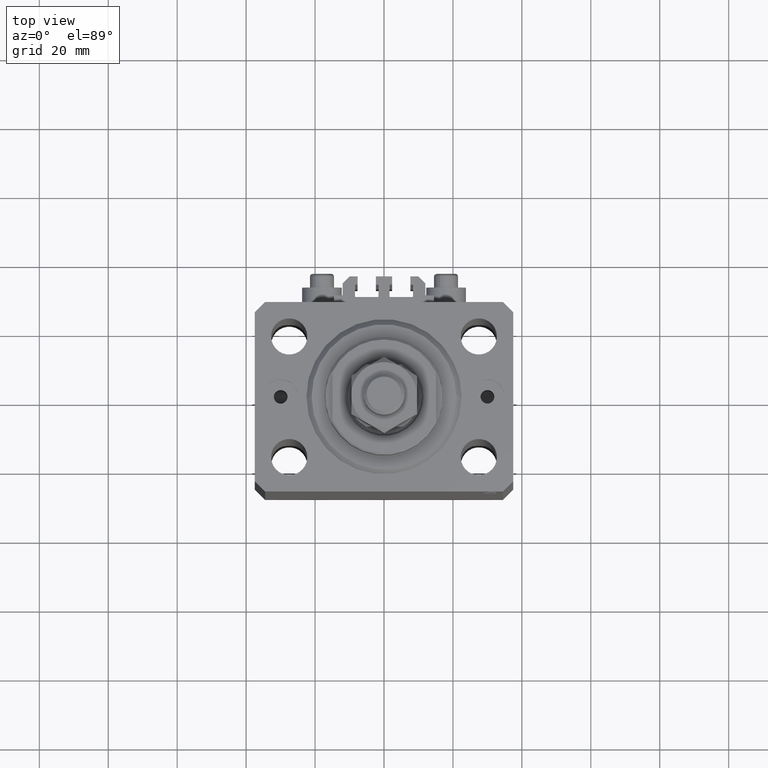
[diagram: clean part render]
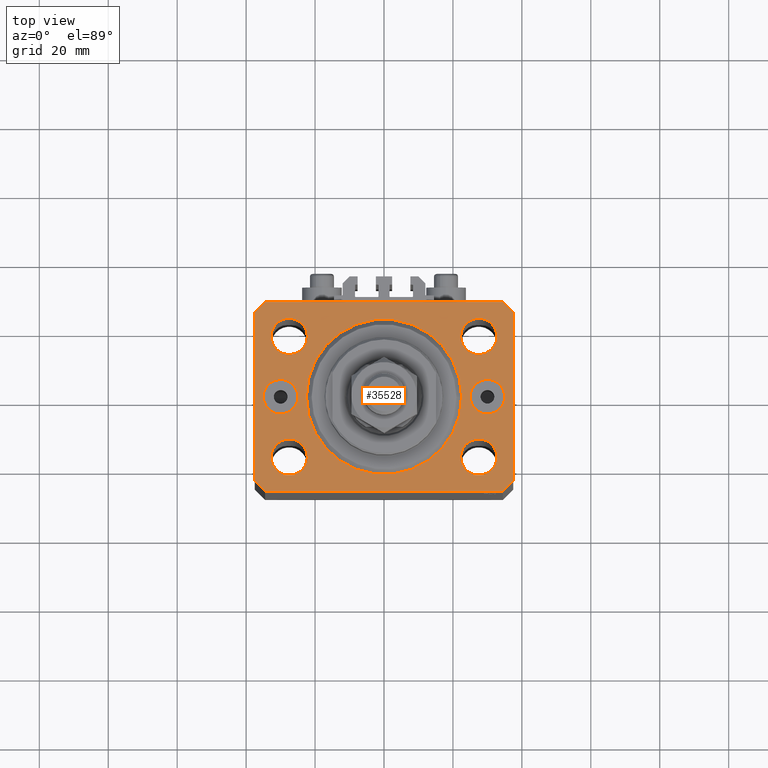
[diagram: same view with one face highlighted and labeled with its STEP entity id]
A machine part, top view. The second image highlights one B-rep face of the part: STEP entity #35528.
In plain terms, the highlighted planar face has unit normal (0, 0, 1).
Its self-contained STEP definition (entity closure, byte-faithful):
#36 = AXIS2_PLACEMENT_3D ( 'NONE', #4438, #37742, #254 ) ;
#224 = DIRECTION ( 'NONE',  ( 1.000000000000000000, 0.000000000000000000, 0.000000000000000000 ) ) ;
#254 = DIRECTION ( 'NONE',  ( 1.000000000000000000, 0.000000000000000000, 0.000000000000000000 ) ) ;
#851 = VERTEX_POINT ( 'NONE', #18013 ) ;
#984 = DIRECTION ( 'NONE',  ( 0.000000000000000000, 0.000000000000000000, 1.000000000000000000 ) ) ;
#1068 = CARTESIAN_POINT ( 'NONE',  ( 22.50000000000000355, 0.000000000000000000, 0.000000000000000000 ) ) ;
#1310 = CARTESIAN_POINT ( 'NONE',  ( 32.75000000000000000, 17.49999999999999289, 0.000000000000000000 ) ) ;
#1417 = LINE ( 'NONE', #38435, #46409 ) ;
#1662 = CARTESIAN_POINT ( 'NONE',  ( -22.24999999999999289, -17.50000000000000000, 0.000000000000000000 ) ) ;
#2406 = AXIS2_PLACEMENT_3D ( 'NONE', #7907, #984, #41455 ) ;
#2415 = DIRECTION ( 'NONE',  ( 1.000000000000000000, 0.000000000000000000, 0.000000000000000000 ) ) ;
#2441 = VECTOR ( 'NONE', #5934, 1000.000000000000000 ) ;
#2582 = ORIENTED_EDGE ( 'NONE', *, *, #9590, .T. ) ;
#2610 = EDGE_LOOP ( 'NONE', ( #9771, #42722 ) ) ;
#2741 = EDGE_LOOP ( 'NONE', ( #5873, #25745 ) ) ;
#2779 = ORIENTED_EDGE ( 'NONE', *, *, #46538, .T. ) ;
#2852 = AXIS2_PLACEMENT_3D ( 'NONE', #32266, #6614, #21665 ) ;
#2857 = ORIENTED_EDGE ( 'NONE', *, *, #28378, .F. ) ;
#3114 = VECTOR ( 'NONE', #3466, 1000.000000000000114 ) ;
#3156 = CARTESIAN_POINT ( 'NONE',  ( 37.49999999999999289, -24.50000000000000000, 0.000000000000000000 ) ) ;
#3386 = VERTEX_POINT ( 'NONE', #3156 ) ;
#3466 = DIRECTION ( 'NONE',  ( 0.7071067811865474617, 0.7071067811865474617, 0.000000000000000000 ) ) ;
#3912 = CARTESIAN_POINT ( 'NONE',  ( -37.49999999999999289, 24.50000000000000000, 0.000000000000000000 ) ) ;
#3947 = DIRECTION ( 'NONE',  ( 0.000000000000000000, 0.000000000000000000, 1.000000000000000000 ) ) ;
#4438 = CARTESIAN_POINT ( 'NONE',  ( -30.00000000000000000, 0.000000000000000000, 0.000000000000000000 ) ) ;
#4442 = CIRCLE ( 'NONE', #19411, 5.250000000000000888 ) ;
#4468 = CARTESIAN_POINT ( 'NONE',  ( -34.99999999999999289, 6.123233995736768255E-16, 0.000000000000000000 ) ) ;
#4515 = LINE ( 'NONE', #47181, #40039 ) ;
#4579 = FACE_BOUND ( 'NONE', #48809, .T. ) ;
#5873 = ORIENTED_EDGE ( 'NONE', *, *, #8880, .F. ) ;
#5934 = DIRECTION ( 'NONE',  ( 1.000000000000000000, 0.000000000000000000, 0.000000000000000000 ) ) ;
#6005 = VERTEX_POINT ( 'NONE', #43144 ) ;
#6015 = CARTESIAN_POINT ( 'NONE',  ( 27.50000000000000000, 17.49999999999999289, 0.000000000000000000 ) ) ;
#6147 = DIRECTION ( 'NONE',  ( 1.000000000000000000, 0.000000000000000000, 0.000000000000000000 ) ) ;
#6367 = CIRCLE ( 'NONE', #10262, 5.250000000000000888 ) ;
#6440 = ORIENTED_EDGE ( 'NONE', *, *, #31522, .T. ) ;
#6614 = DIRECTION ( 'NONE',  ( 0.000000000000000000, 0.000000000000000000, 1.000000000000000000 ) ) ;
#7541 = VERTEX_POINT ( 'NONE', #32096 ) ;
#7658 = CARTESIAN_POINT ( 'NONE',  ( 34.49999999999999289, -27.49999999999999645, 0.000000000000000000 ) ) ;
#7800 = DIRECTION ( 'NONE',  ( 0.000000000000000000, 0.000000000000000000, 1.000000000000000000 ) ) ;
#7907 = CARTESIAN_POINT ( 'NONE',  ( -27.49999999999999289, -17.50000000000000000, 0.000000000000000000 ) ) ;
#7922 = DIRECTION ( 'NONE',  ( 0.000000000000000000, -0.000000000000000000, -1.000000000000000000 ) ) ;
#8188 = CARTESIAN_POINT ( 'NONE',  ( -32.74999999999999289, -17.50000000000000000, 0.000000000000000000 ) ) ;
#8446 = CIRCLE ( 'NONE', #42340, 5.250000000000000888 ) ;
#8580 = VERTEX_POINT ( 'NONE', #38053 ) ;
#8791 = AXIS2_PLACEMENT_3D ( 'NONE', #20189, #42902, #2415 ) ;
#8876 = EDGE_CURVE ( 'NONE', #34474, #15051, #30092, .T. ) ;
#8880 = EDGE_CURVE ( 'NONE', #17841, #45896, #44953, .T. ) ;
#9557 = LINE ( 'NONE', #24372, #26657 ) ;
#9590 = EDGE_CURVE ( 'NONE', #22891, #6005, #42927, .T. ) ;
#9615 = CARTESIAN_POINT ( 'NONE',  ( -27.50000000000000000, 17.49999999999999645, 0.000000000000000000 ) ) ;
#9771 = ORIENTED_EDGE ( 'NONE', *, *, #21956, .F. ) ;
#9985 = CIRCLE ( 'NONE', #37557, 5.250000000000000888 ) ;
#10075 = CARTESIAN_POINT ( 'NONE',  ( 30.00000000000000000, 0.000000000000000000, 0.000000000000000000 ) ) ;
#10083 = AXIS2_PLACEMENT_3D ( 'NONE', #45962, #35310, #31383 ) ;
#10262 = AXIS2_PLACEMENT_3D ( 'NONE', #9615, #43910, #13314 ) ;
#10404 = DIRECTION ( 'NONE',  ( 0.000000000000000000, 0.000000000000000000, 1.000000000000000000 ) ) ;
#10421 = EDGE_CURVE ( 'NONE', #45896, #17841, #19031, .T. ) ;
#11240 = CARTESIAN_POINT ( 'NONE',  ( 0.000000000000000000, 0.000000000000000000, 0.000000000000000000 ) ) ;
#11284 = CARTESIAN_POINT ( 'NONE',  ( -37.49999999999999289, -24.50000000000000000, 0.000000000000000000 ) ) ;
#11540 = ORIENTED_EDGE ( 'NONE', *, *, #22808, .F. ) ;
#11634 = CIRCLE ( 'NONE', #39211, 4.999999999999997335 ) ;
#11692 = EDGE_CURVE ( 'NONE', #13598, #45758, #14318, .T. ) ;
#11777 = VERTEX_POINT ( 'NONE', #20207 ) ;
#11944 = AXIS2_PLACEMENT_3D ( 'NONE', #14342, #3947, #14583 ) ;
#12647 = CARTESIAN_POINT ( 'NONE',  ( -34.49999999999998579, -27.49999999999999645, 0.000000000000000000 ) ) ;
#13314 = DIRECTION ( 'NONE',  ( 1.000000000000000000, 0.000000000000000000, 0.000000000000000000 ) ) ;
#13392 = DIRECTION ( 'NONE',  ( 1.076236605503979380E-14, 1.000000000000000000, 0.000000000000000000 ) ) ;
#13598 = VERTEX_POINT ( 'NONE', #13634 ) ;
#13634 = CARTESIAN_POINT ( 'NONE',  ( -22.25000000000000000, 17.49999999999999645, 0.000000000000000000 ) ) ;
#13647 = LINE ( 'NONE', #7658, #3114 ) ;
#13899 = ORIENTED_EDGE ( 'NONE', *, *, #38479, .T. ) ;
#13923 = ORIENTED_EDGE ( 'NONE', *, *, #28709, .F. ) ;
#13982 = VERTEX_POINT ( 'NONE', #3912 ) ;
#14279 = EDGE_LOOP ( 'NONE', ( #44397, #35408, #15582, #32980, #26024, #13899, #2779, #2582 ) ) ;
#14318 = CIRCLE ( 'NONE', #11944, 5.250000000000000888 ) ;
#14342 = CARTESIAN_POINT ( 'NONE',  ( -27.50000000000000000, 17.49999999999999645, 0.000000000000000000 ) ) ;
#14394 = VERTEX_POINT ( 'NONE', #18460 ) ;
#14434 = VERTEX_POINT ( 'NONE', #11284 ) ;
#14583 = DIRECTION ( 'NONE',  ( 1.000000000000000000, 0.000000000000000000, 0.000000000000000000 ) ) ;
#15051 = VERTEX_POINT ( 'NONE', #17291 ) ;
#15414 = EDGE_LOOP ( 'NONE', ( #11540, #2857 ) ) ;
#15582 = ORIENTED_EDGE ( 'NONE', *, *, #31309, .T. ) ;
#15661 = LINE ( 'NONE', #38112, #36740 ) ;
#16607 = ORIENTED_EDGE ( 'NONE', *, *, #42790, .F. ) ;
#16751 = EDGE_LOOP ( 'NONE', ( #16607, #17637 ) ) ;
#17203 = CIRCLE ( 'NONE', #10083, 5.250000000000000888 ) ;
#17291 = CARTESIAN_POINT ( 'NONE',  ( -24.99999999999999645, 0.000000000000000000, 0.000000000000000000 ) ) ;
#17372 = VERTEX_POINT ( 'NONE', #39955 ) ;
#17637 = ORIENTED_EDGE ( 'NONE', *, *, #40957, .F. ) ;
#17841 = VERTEX_POINT ( 'NONE', #1662 ) ;
#18013 = CARTESIAN_POINT ( 'NONE',  ( -34.49999999999999289, 27.50000000000000000, 0.000000000000000000 ) ) ;
#18188 = ORIENTED_EDGE ( 'NONE', *, *, #11692, .F. ) ;
#18318 = VERTEX_POINT ( 'NONE', #12647 ) ;
#18460 = CARTESIAN_POINT ( 'NONE',  ( 22.24999999999999289, -17.50000000000000000, 0.000000000000000000 ) ) ;
#18995 = CIRCLE ( 'NONE', #8791, 22.50000000000000355 ) ;
#19016 = DIRECTION ( 'NONE',  ( 1.000000000000000000, 0.000000000000000000, 0.000000000000000000 ) ) ;
#19031 = CIRCLE ( 'NONE', #37935, 5.250000000000000888 ) ;
#19411 = AXIS2_PLACEMENT_3D ( 'NONE', #6015, #39816, #46976 ) ;
#19582 = CARTESIAN_POINT ( 'NONE',  ( 27.50000000000000000, 17.49999999999999289, 0.000000000000000000 ) ) ;
#19619 = FACE_BOUND ( 'NONE', #22167, .T. ) ;
#20189 = CARTESIAN_POINT ( 'NONE',  ( 0.000000000000000000, 0.000000000000000000, 0.000000000000000000 ) ) ;
#20207 = CARTESIAN_POINT ( 'NONE',  ( 34.49999999999999289, -27.49999999999999645, 0.000000000000000000 ) ) ;
#20393 = ORIENTED_EDGE ( 'NONE', *, *, #38746, .T. ) ;
#20665 = DIRECTION ( 'NONE',  ( 0.7071067811865483499, -0.7071067811865466846, 0.000000000000000000 ) ) ;
#21665 = DIRECTION ( 'NONE',  ( 1.000000000000000000, 0.000000000000000000, 0.000000000000000000 ) ) ;
#21900 = CARTESIAN_POINT ( 'NONE',  ( -34.49999999999998579, -27.49999999999999645, 0.000000000000000000 ) ) ;
#21956 = EDGE_CURVE ( 'NONE', #15051, #34474, #41657, .T. ) ;
#22167 = EDGE_LOOP ( 'NONE', ( #13923, #43764 ) ) ;
#22594 = FACE_OUTER_BOUND ( 'NONE', #14279, .T. ) ;
#22627 = EDGE_CURVE ( 'NONE', #851, #13982, #15661, .T. ) ;
#22808 = EDGE_CURVE ( 'NONE', #29849, #7541, #4442, .T. ) ;
#22891 = VERTEX_POINT ( 'NONE', #37798 ) ;
#23589 = DIRECTION ( 'NONE',  ( 1.000000000000000000, 0.000000000000000000, 0.000000000000000000 ) ) ;
#23686 = AXIS2_PLACEMENT_3D ( 'NONE', #35158, #27535, #23589 ) ;
#23968 = VERTEX_POINT ( 'NONE', #25465 ) ;
#24047 = CARTESIAN_POINT ( 'NONE',  ( -32.75000000000000000, 17.49999999999999645, 0.000000000000000000 ) ) ;
#24237 = DIRECTION ( 'NONE',  ( 0.000000000000000000, -1.000000000000000000, 0.000000000000000000 ) ) ;
#24372 = CARTESIAN_POINT ( 'NONE',  ( -37.49999999999999289, -24.50000000000000000, 0.000000000000000000 ) ) ;
#24504 = LINE ( 'NONE', #47203, #26132 ) ;
#24925 = LINE ( 'NONE', #21900, #2441 ) ;
#25465 = CARTESIAN_POINT ( 'NONE',  ( 34.99999999999999289, 0.000000000000000000, 0.000000000000000000 ) ) ;
#25745 = ORIENTED_EDGE ( 'NONE', *, *, #10421, .F. ) ;
#26024 = ORIENTED_EDGE ( 'NONE', *, *, #41720, .T. ) ;
#26074 = FACE_BOUND ( 'NONE', #15414, .T. ) ;
#26132 = VECTOR ( 'NONE', #13392, 1000.000000000000000 ) ;
#26548 = FACE_BOUND ( 'NONE', #2741, .T. ) ;
#26657 = VECTOR ( 'NONE', #20665, 1000.000000000000000 ) ;
#27535 = DIRECTION ( 'NONE',  ( 0.000000000000000000, 0.000000000000000000, 1.000000000000000000 ) ) ;
#27876 = DIRECTION ( 'NONE',  ( -0.7071067811865364705, 0.7071067811865584529, 0.000000000000000000 ) ) ;
#28228 = AXIS2_PLACEMENT_3D ( 'NONE', #11240, #7800, #41106 ) ;
#28378 = EDGE_CURVE ( 'NONE', #7541, #29849, #8446, .T. ) ;
#28709 = EDGE_CURVE ( 'NONE', #37923, #14394, #9985, .T. ) ;
#29250 = VECTOR ( 'NONE', #27876, 1000.000000000000114 ) ;
#29849 = VERTEX_POINT ( 'NONE', #1310 ) ;
#30092 = CIRCLE ( 'NONE', #36, 5.000000000000000888 ) ;
#30487 = FACE_BOUND ( 'NONE', #2610, .T. ) ;
#30780 = CIRCLE ( 'NONE', #23686, 22.50000000000000355 ) ;
#30951 = DIRECTION ( 'NONE',  ( 0.000000000000000000, 0.000000000000000000, 1.000000000000000000 ) ) ;
#31309 = EDGE_CURVE ( 'NONE', #13982, #14434, #4515, .T. ) ;
#31383 = DIRECTION ( 'NONE',  ( 1.000000000000000000, 0.000000000000000000, 0.000000000000000000 ) ) ;
#31522 = EDGE_CURVE ( 'NONE', #8580, #23968, #11634, .T. ) ;
#31919 = EDGE_CURVE ( 'NONE', #14434, #18318, #9557, .T. ) ;
#32096 = CARTESIAN_POINT ( 'NONE',  ( 22.25000000000000000, 17.49999999999999289, 0.000000000000000000 ) ) ;
#32266 = CARTESIAN_POINT ( 'NONE',  ( -30.00000000000000000, 0.000000000000000000, 0.000000000000000000 ) ) ;
#32980 = ORIENTED_EDGE ( 'NONE', *, *, #31919, .T. ) ;
#33278 = VERTEX_POINT ( 'NONE', #1068 ) ;
#33581 = DIRECTION ( 'NONE',  ( 1.000000000000000000, 0.000000000000000000, 0.000000000000000000 ) ) ;
#34408 = DIRECTION ( 'NONE',  ( -0.7071067811865471286, -0.7071067811865479058, 0.000000000000000000 ) ) ;
#34474 = VERTEX_POINT ( 'NONE', #4468 ) ;
#34493 = DIRECTION ( 'NONE',  ( -1.000000000000000000, 0.000000000000000000, 0.000000000000000000 ) ) ;
#34502 = ORIENTED_EDGE ( 'NONE', *, *, #40529, .F. ) ;
#34669 = FACE_BOUND ( 'NONE', #16751, .T. ) ;
#35019 = EDGE_CURVE ( 'NONE', #14394, #37923, #17203, .T. ) ;
#35158 = CARTESIAN_POINT ( 'NONE',  ( 0.000000000000000000, 0.000000000000000000, 0.000000000000000000 ) ) ;
#35243 = CARTESIAN_POINT ( 'NONE',  ( 32.74999999999999289, -17.50000000000000000, 0.000000000000000000 ) ) ;
#35310 = DIRECTION ( 'NONE',  ( 0.000000000000000000, 0.000000000000000000, 1.000000000000000000 ) ) ;
#35408 = ORIENTED_EDGE ( 'NONE', *, *, #22627, .T. ) ;
#35528 = ADVANCED_FACE ( 'NONE', ( #22594, #4579, #26074, #19619, #26548, #34669, #30487, #41349 ), #45544, .T. ) ;
#35760 = CARTESIAN_POINT ( 'NONE',  ( 37.50000000000051870, 24.49999999999995381, 0.000000000000000000 ) ) ;
#36740 = VECTOR ( 'NONE', #34408, 1000.000000000000000 ) ;
#37557 = AXIS2_PLACEMENT_3D ( 'NONE', #48364, #37715, #224 ) ;
#37577 = EDGE_CURVE ( 'NONE', #6005, #851, #1417, .T. ) ;
#37715 = DIRECTION ( 'NONE',  ( 0.000000000000000000, 0.000000000000000000, 1.000000000000000000 ) ) ;
#37742 = DIRECTION ( 'NONE',  ( 0.000000000000000000, 0.000000000000000000, 1.000000000000000000 ) ) ;
#37767 = CIRCLE ( 'NONE', #39361, 4.999999999999997335 ) ;
#37798 = CARTESIAN_POINT ( 'NONE',  ( 37.50000000000051870, 24.49999999999995381, 0.000000000000000000 ) ) ;
#37923 = VERTEX_POINT ( 'NONE', #35243 ) ;
#37935 = AXIS2_PLACEMENT_3D ( 'NONE', #40515, #10404, #33581 ) ;
#38053 = CARTESIAN_POINT ( 'NONE',  ( 25.00000000000000000, 6.123233995736762338E-16, 0.000000000000000000 ) ) ;
#38112 = CARTESIAN_POINT ( 'NONE',  ( -34.49999999999999289, 27.50000000000000000, 0.000000000000000000 ) ) ;
#38435 = CARTESIAN_POINT ( 'NONE',  ( 34.50000000000056843, 27.50000000000000000, 0.000000000000000000 ) ) ;
#38479 = EDGE_CURVE ( 'NONE', #11777, #3386, #13647, .T. ) ;
#38746 = EDGE_CURVE ( 'NONE', #23968, #8580, #37767, .T. ) ;
#38902 = EDGE_LOOP ( 'NONE', ( #20393, #6440 ) ) ;
#39211 = AXIS2_PLACEMENT_3D ( 'NONE', #46151, #7922, #19016 ) ;
#39361 = AXIS2_PLACEMENT_3D ( 'NONE', #10075, #40190, #6147 ) ;
#39816 = DIRECTION ( 'NONE',  ( 0.000000000000000000, 0.000000000000000000, 1.000000000000000000 ) ) ;
#39955 = CARTESIAN_POINT ( 'NONE',  ( -22.50000000000000355, 2.755455298081544383E-15, 0.000000000000000000 ) ) ;
#40039 = VECTOR ( 'NONE', #24237, 1000.000000000000000 ) ;
#40190 = DIRECTION ( 'NONE',  ( 0.000000000000000000, -0.000000000000000000, -1.000000000000000000 ) ) ;
#40515 = CARTESIAN_POINT ( 'NONE',  ( -27.49999999999999289, -17.50000000000000000, 0.000000000000000000 ) ) ;
#40529 = EDGE_CURVE ( 'NONE', #45758, #13598, #6367, .T. ) ;
#40957 = EDGE_CURVE ( 'NONE', #17372, #33278, #30780, .T. ) ;
#41106 = DIRECTION ( 'NONE',  ( 1.000000000000000000, 0.000000000000000000, -0.000000000000000000 ) ) ;
#41349 = FACE_BOUND ( 'NONE', #38902, .T. ) ;
#41455 = DIRECTION ( 'NONE',  ( 1.000000000000000000, 0.000000000000000000, 0.000000000000000000 ) ) ;
#41547 = DIRECTION ( 'NONE',  ( 1.000000000000000000, 0.000000000000000000, 0.000000000000000000 ) ) ;
#41657 = CIRCLE ( 'NONE', #2852, 5.000000000000000888 ) ;
#41720 = EDGE_CURVE ( 'NONE', #18318, #11777, #24925, .T. ) ;
#42340 = AXIS2_PLACEMENT_3D ( 'NONE', #19582, #30951, #41547 ) ;
#42722 = ORIENTED_EDGE ( 'NONE', *, *, #8876, .F. ) ;
#42790 = EDGE_CURVE ( 'NONE', #33278, #17372, #18995, .T. ) ;
#42902 = DIRECTION ( 'NONE',  ( 0.000000000000000000, 0.000000000000000000, 1.000000000000000000 ) ) ;
#42927 = LINE ( 'NONE', #35760, #29250 ) ;
#43144 = CARTESIAN_POINT ( 'NONE',  ( 34.50000000000056843, 27.50000000000000000, 0.000000000000000000 ) ) ;
#43764 = ORIENTED_EDGE ( 'NONE', *, *, #35019, .F. ) ;
#43910 = DIRECTION ( 'NONE',  ( 0.000000000000000000, 0.000000000000000000, 1.000000000000000000 ) ) ;
#44397 = ORIENTED_EDGE ( 'NONE', *, *, #37577, .T. ) ;
#44953 = CIRCLE ( 'NONE', #2406, 5.250000000000000888 ) ;
#45544 = PLANE ( 'NONE',  #28228 ) ;
#45758 = VERTEX_POINT ( 'NONE', #24047 ) ;
#45896 = VERTEX_POINT ( 'NONE', #8188 ) ;
#45962 = CARTESIAN_POINT ( 'NONE',  ( 27.49999999999999289, -17.50000000000000000, 0.000000000000000000 ) ) ;
#46151 = CARTESIAN_POINT ( 'NONE',  ( 30.00000000000000000, 0.000000000000000000, 0.000000000000000000 ) ) ;
#46409 = VECTOR ( 'NONE', #34493, 1000.000000000000000 ) ;
#46538 = EDGE_CURVE ( 'NONE', #3386, #22891, #24504, .T. ) ;
#46976 = DIRECTION ( 'NONE',  ( 1.000000000000000000, 0.000000000000000000, 0.000000000000000000 ) ) ;
#47181 = CARTESIAN_POINT ( 'NONE',  ( -37.49999999999999289, 24.50000000000000000, 0.000000000000000000 ) ) ;
#47203 = CARTESIAN_POINT ( 'NONE',  ( 37.49999999999999289, -24.50000000000000000, 0.000000000000000000 ) ) ;
#48364 = CARTESIAN_POINT ( 'NONE',  ( 27.49999999999999289, -17.50000000000000000, 0.000000000000000000 ) ) ;
#48809 = EDGE_LOOP ( 'NONE', ( #18188, #34502 ) ) ;